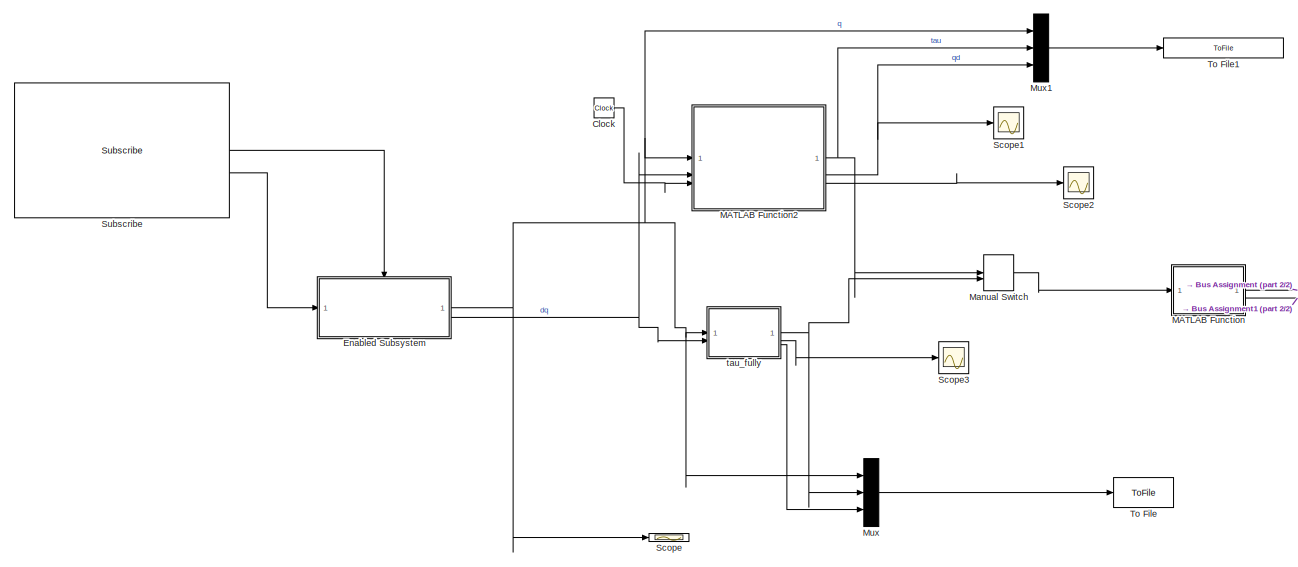
[diagram: root canvas - part 1/2, left side, full height]
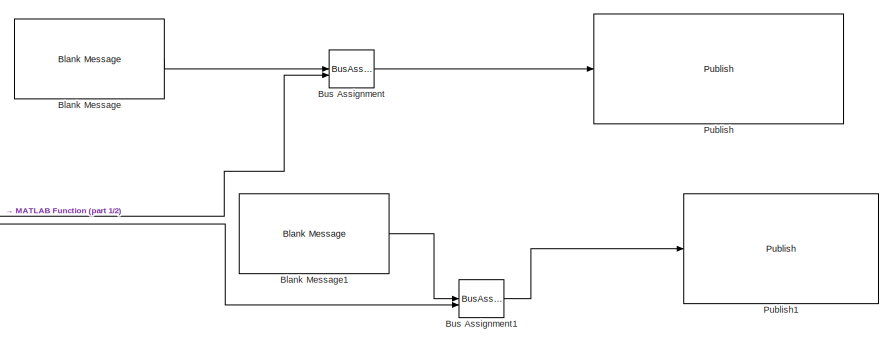
[diagram: root canvas - part 2/2, middle right region]
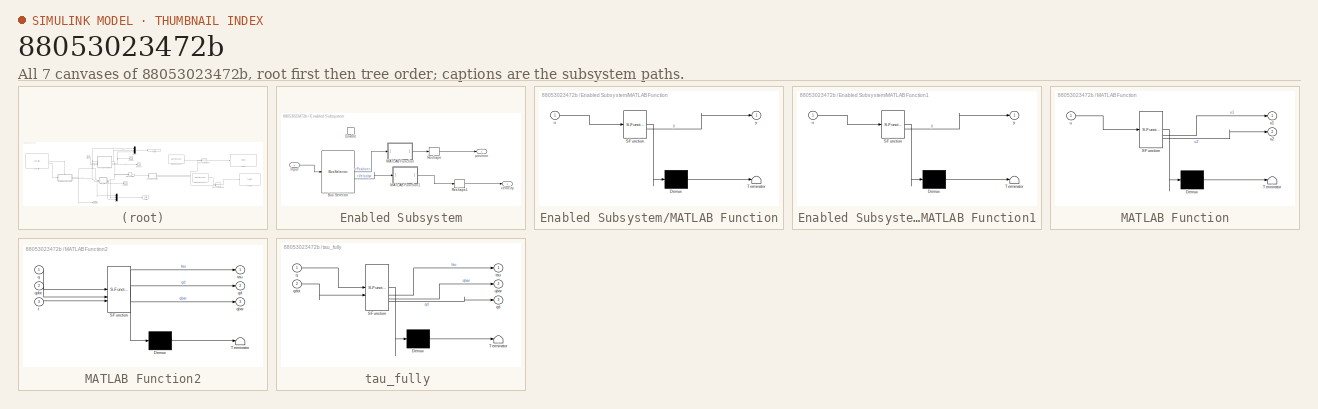
[diagram: thumbnail index - all 7 canvases of the model, root first then tree order]
MODEL slx_88053023472b
KIND model
CONFIG AbsTol = auto
CONFIG EnableMultiTasking = off
CONFIG FixedStep = 0.002
CONFIG MaxStep = auto
CONFIG MinStep = auto
CONFIG RelTol = 1e-3
CONFIG SampleTimeConstraint = Unconstrained
CONFIG SolverName = ode1
CONFIG StartTime = 0.0
CONFIG StopTime = 6
BLOCK [Reference] Blank Message  REF=robotlib/Blank Message
  LibrarySourceBlock = roslib/ROS/Blank Message
  SourceBlock = robotlib/Blank Message
  SourceType = ROS Blank Message
BLOCK [Reference] Blank Message1  REF=robotlib/Blank Message
  LibrarySourceBlock = roslib/ROS/Blank Message
  SourceBlock = robotlib/Blank Message
  SourceType = ROS Blank Message
BLOCK [BusAssignment] Bus Assignment
  AssignedSignals = Data
BLOCK [BusAssignment] Bus Assignment1
  AssignedSignals = Data
BLOCK [Clock] Clock
BLOCK [SubSystem] Enabled Subsystem
  TreatAsAtomicUnit = on
BLOCK [BusSelector] Enabled Subsystem/Bus Selector
  OutputSignals = Position,Velocity
BLOCK [EnablePort] Enabled Subsystem/Enable
BLOCK [Inport] Enabled Subsystem/Input
BLOCK [SubSystem] Enabled Subsystem/MATLAB Function
  ErrorFcn = Stateflow.Translate.translate
  LibrarySourceBlock = simulink/User-Defined\nFunctions/MATLAB Function
  PermitHierarchicalResolution = ExplicitOnly
  SFBlockType = MATLAB Function
  TreatAsAtomicUnit = on
BLOCK [Demux] Enabled Subsystem/MATLAB Function/ Demux 
  Outputs = 1
BLOCK [S-Function] Enabled Subsystem/MATLAB Function/ SFunction 
  EnableBusSupport = on
  FunctionName = sf_sfun
  PortCounts = [1 2]
  SFcnIsStateOwnerBlock = off
  SFunctionDeploymentMode = off
  Tag = Stateflow S-Function 13
BLOCK [Terminator] Enabled Subsystem/MATLAB Function/ Terminator 
BLOCK [Inport] Enabled Subsystem/MATLAB Function/u
BLOCK [Outport] Enabled Subsystem/MATLAB Function/y
BLOCK [SubSystem] Enabled Subsystem/MATLAB Function1
  ErrorFcn = Stateflow.Translate.translate
  LibrarySourceBlock = simulink/User-Defined\nFunctions/MATLAB Function
  PermitHierarchicalResolution = ExplicitOnly
  SFBlockType = MATLAB Function
  TreatAsAtomicUnit = on
BLOCK [Demux] Enabled Subsystem/MATLAB Function1/ Demux 
  Outputs = 1
BLOCK [S-Function] Enabled Subsystem/MATLAB Function1/ SFunction 
  EnableBusSupport = on
  FunctionName = sf_sfun
  PortCounts = [1 2]
  SFcnIsStateOwnerBlock = off
  SFunctionDeploymentMode = off
  Tag = Stateflow S-Function 14
BLOCK [Terminator] Enabled Subsystem/MATLAB Function1/ Terminator 
BLOCK [Inport] Enabled Subsystem/MATLAB Function1/u
BLOCK [Outport] Enabled Subsystem/MATLAB Function1/y
BLOCK [Reshape] Enabled Subsystem/Reshape
  OutputDimensionality = Column vector (2-D)
BLOCK [Reshape] Enabled Subsystem/Reshape1
  OutputDimensionality = Column vector (2-D)
BLOCK [Outport] Enabled Subsystem/position
BLOCK [Outport] Enabled Subsystem/velocity
  Port = 2
BLOCK [SubSystem] MATLAB Function
  ErrorFcn = Stateflow.Translate.translate
  LibrarySourceBlock = simulink/User-Defined\nFunctions/MATLAB Function
  PermitHierarchicalResolution = ExplicitOnly
  SFBlockType = MATLAB Function
  TreatAsAtomicUnit = on
BLOCK [Demux] MATLAB Function/ Demux 
  Outputs = 1
BLOCK [S-Function] MATLAB Function/ SFunction 
  EnableBusSupport = on
  FunctionName = sf_sfun
  PortCounts = [1 3]
  SFcnIsStateOwnerBlock = off
  SFunctionDeploymentMode = off
  Tag = Stateflow S-Function 3
BLOCK [Terminator] MATLAB Function/ Terminator 
BLOCK [Inport] MATLAB Function/u
BLOCK [Outport] MATLAB Function/u1
BLOCK [Outport] MATLAB Function/u2
  Port = 2
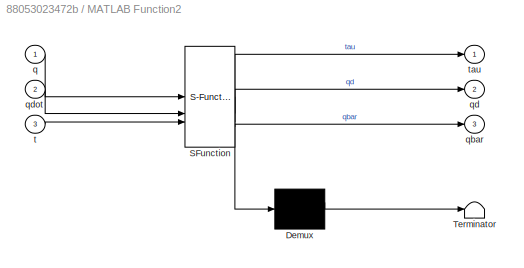
BLOCK [SubSystem] MATLAB Function2
  ErrorFcn = Stateflow.Translate.translate
  PermitHierarchicalResolution = ExplicitOnly
  SFBlockType = MATLAB Function
  TreatAsAtomicUnit = on
BLOCK [Demux] MATLAB Function2/ Demux 
  Outputs = 1
BLOCK [S-Function] MATLAB Function2/ SFunction 
  EnableBusSupport = on
  FunctionName = sf_sfun
  PortCounts = [3 4]
  SFcnIsStateOwnerBlock = off
  SFunctionDeploymentMode = off
  Tag = Stateflow S-Function 2
BLOCK [Terminator] MATLAB Function2/ Terminator 
BLOCK [Inport] MATLAB Function2/q
BLOCK [Outport] MATLAB Function2/qbar
  Port = 3
BLOCK [Outport] MATLAB Function2/qd
  Port = 2
BLOCK [Inport] MATLAB Function2/qdot
  Port = 2
BLOCK [Inport] MATLAB Function2/t
  Port = 3
BLOCK [Outport] MATLAB Function2/tau
BLOCK [ManualSwitch] Manual Switch
BLOCK [Mux] Mux
  DisplayOption = bar
  Inputs = 3
BLOCK [Mux] Mux1
  DisplayOption = bar
  Inputs = 3
BLOCK [Reference] Publish  REF=robotlib/Publish
  LibrarySourceBlock = roslib/ROS/Publish
  SourceBlock = robotlib/Publish
  SourceType = ROS Publish
BLOCK [Reference] Publish1  REF=robotlib/Publish
  LibrarySourceBlock = roslib/ROS/Publish
  SourceBlock = robotlib/Publish
  SourceType = ROS Publish
BLOCK [Scope] Scope
  Floating = off
  NumInputPorts = 1
  ScopeSpecificationString = Simulink.scopes.TimeScopeBlockCfg('CurrentConfiguration', extmgr.ConfigurationSet(extmgr.Configuration('Core','General UI',true),extmgr.Configuration('Core','Source UI',true),extmgr.Configuration('Sources','WiredSimulink',true),extmgr.Configuration('Visuals','Time Domain',true,'SerializedDisplays',{struct('MinYLimReal','-1.56701','MaxYLimReal','1.33818','YLabelReal','','MinYLimMag','0.00000','MaxY...<+1385ch>
BLOCK [Scope] Scope1
  Floating = off
  NumInputPorts = 1
  ScopeSpecificationString = Simulink.scopes.TimeScopeBlockCfg('CurrentConfiguration', extmgr.ConfigurationSet(extmgr.Configuration('Core','General UI',true),extmgr.Configuration('Core','Source UI',true),extmgr.Configuration('Sources','WiredSimulink',true,'DataLoggingVariableName','ScopeData1'),extmgr.Configuration('Visuals','Time Domain',true,'SerializedDisplays',{struct('MinYLimReal','-1.42493','MaxYLimReal','1.29341','YLab...<+1370ch>
BLOCK [Scope] Scope2
  Floating = off
  NumInputPorts = 1
  ScopeSpecificationString = Simulink.scopes.TimeScopeBlockCfg('CurrentConfiguration', extmgr.ConfigurationSet(extmgr.Configuration('Core','General UI',true),extmgr.Configuration('Core','Source UI',true),extmgr.Configuration('Sources','WiredSimulink',true,'DataLoggingVariableName','ScopeData2'),extmgr.Configuration('Visuals','Time Domain',true,'SerializedDisplays',{struct('MinYLimReal','-1.38444','MaxYLimReal','1.43306','YLab...<+1438ch>
BLOCK [Scope] Scope3
  Floating = off
  NumInputPorts = 1
  ScopeSpecificationString = Simulink.scopes.TimeScopeBlockCfg('CurrentConfiguration', extmgr.ConfigurationSet(extmgr.Configuration('Core','General UI',true),extmgr.Configuration('Core','Source UI',true),extmgr.Configuration('Sources','WiredSimulink',true,'DataLoggingVariableName','ScopeData3'),extmgr.Configuration('Visuals','Time Domain',true,'SerializedDisplays',{struct('MinYLimReal','-2.21303','MaxYLimReal','0.66305','YLab...<+1451ch>
BLOCK [Reference] Subscribe  REF=robotlib/Subscribe
  LibrarySourceBlock = roslib/ROS/Subscribe
  SourceBlock = robotlib/Subscribe
  SourceType = ROS Subscribe
BLOCK [ToFile] To File
  Filename = q_ros.mat
  MatrixName = q
  SaveFormat = Timeseries
BLOCK [ToFile] To File1
  Filename = q_ros_traj2.mat
  MatrixName = q
  SaveFormat = Timeseries
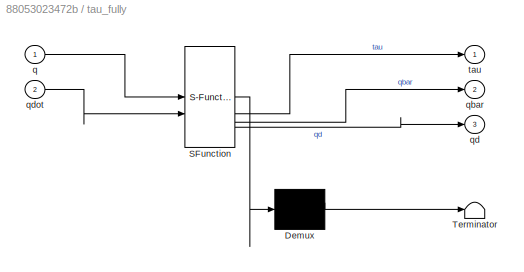
BLOCK [SubSystem] tau_fully 
  ErrorFcn = Stateflow.Translate.translate
  PermitHierarchicalResolution = ExplicitOnly
  SFBlockType = MATLAB Function
  TreatAsAtomicUnit = on
BLOCK [Demux] tau_fully / Demux 
  Outputs = 1
BLOCK [S-Function] tau_fully / SFunction 
  EnableBusSupport = on
  FunctionName = sf_sfun
  PortCounts = [2 4]
  SFcnIsStateOwnerBlock = off
  SFunctionDeploymentMode = off
  Tag = Stateflow S-Function 1
BLOCK [Terminator] tau_fully / Terminator 
BLOCK [Inport] tau_fully /q
BLOCK [Outport] tau_fully /qbar
  Port = 2
BLOCK [Outport] tau_fully /qd
  Port = 3
BLOCK [Inport] tau_fully /qdot
  Port = 2
BLOCK [Outport] tau_fully /tau
  VectorParamsAs1DForOutWhenUnconnected = off
LINE Blank Message1:1 -> Bus Assignment1:1
LINE Blank Message:1 -> Bus Assignment:1
LINE Bus Assignment1:1 -> Publish1:1
LINE Bus Assignment:1 -> Publish:1
LINE Clock:1 -> MATLAB Function2:3
LINE Enabled Subsystem/Bus Selector:1 -> Enabled Subsystem/MATLAB Function:1
LINE Enabled Subsystem/Bus Selector:2 -> Enabled Subsystem/MATLAB Function1:1
LINE Enabled Subsystem/Input:1 -> Enabled Subsystem/Bus Selector:1
LINE Enabled Subsystem/MATLAB Function1:1 -> Enabled Subsystem/Reshape1:1
LINE Enabled Subsystem/MATLAB Function:1 -> Enabled Subsystem/Reshape:1
LINE Enabled Subsystem/Reshape1:1 -> Enabled Subsystem/velocity:1
LINE Enabled Subsystem/Reshape:1 -> Enabled Subsystem/position:1
NET Enabled Subsystem:1 -> MATLAB Function2:1, Mux1:1, Mux:1, Scope:1, tau_fully :1
NET Enabled Subsystem:2 -> MATLAB Function2:2, tau_fully :2
NET MATLAB Function2:1 -> Manual Switch:1, Mux1:2
NET MATLAB Function2:2 -> Mux1:3, Scope1:1
LINE MATLAB Function2:3 -> Scope2:1
LINE MATLAB Function:1 -> Bus Assignment:2
LINE MATLAB Function:2 -> Bus Assignment1:2
LINE Manual Switch:1 -> MATLAB Function:1
LINE Mux1:1 -> To File1:1
LINE Mux:1 -> To File:1
LINE Subscribe:1 -> Enabled Subsystem:enable
LINE Subscribe:2 -> Enabled Subsystem:1
NET tau_fully :1 -> Manual Switch:2, Mux:2
LINE tau_fully :2 -> Scope3:1
LINE tau_fully :3 -> Mux:3
note: NET lines group one-source signal fan-out (src -> all destinations, sorted); 1:1 wires keep LINE
CHART tau_fully
 states=1 transitions=1
  STATE_LABEL 'eML_blk_kernel()'
  STATE_LABEL 'SCRIPT:\nfunction [tau,qbar,qd]= fcn(q,qdot)\nqd=[0.6;0.8];\nqbar=q-qd;\nq2=q(2);\n\n%Conversion constants from A to Nm ([Nm/A]) obtained from feedback example\n%Ktg1=8.9250;\n%Ktg2=0.87;\nKtg1=1;\nKtg2=0.6;\n\n\nKp=diag([6,2])*1;\nKi=diag([30,10]);\nKd=diag([0.5,0.1]);\n%Mass Inertial matrix\nm1=1.5;\nm2=0.8733;\nI1=0.0102;\nI2=0.0085;\nr1=0.159;\nr2=0.0550; \nl1=0.3493;\nl2=0.2975;\na1=m1*r1^2+m2*l1^2+I1;\na2=m2*r2^2+I2;...<+1061ch>'
CHART MATLAB Function2 states=1 transitions=1
  STATE_LABEL 'eML_blk_kernel()'
  STATE_LABEL 'SCRIPT:\nfunction [tau,qd,qbar]= fcn(q,qdot,t)\nqd=[0.6;0.8];\nmeat_trajectory_q1_4=[ -0.0399    0.3374   -0.8211    1.0209   -1.2782];\nmeat_trajectory_q2_4=[0.0673   -0.5507    1.2833   -1.2111    1.1745];\nmeat_trajectory_q1_6_10=[-0.000009277410992   0.000090314572996   0.001297915318347  -0.026304684172646   0.182139231267472  -0.651240398320963 1.291186157873882  -1.351097352337477   0.5323895485...<+1799ch>'
CHART MATLAB Function states=1 transitions=1
  STATE_LABEL 'eML_blk_kernel()'
  STATE_LABEL 'SCRIPT:\nfunction [u1,u2]= fcn(u)\nu1=u(1)\nu2=u(2)'
CHART Enabled
Subsystem/MATLAB Function states=1 transitions=1
  STATE_LABEL 'eML_blk_kernel()'
  STATE_LABEL 'SCRIPT:\nfunction y = fcn(u)\ny=[0;0]\n\ny(1)=u(1)\ny(2)=u(2)\n'
CHART Enabled
Subsystem/MATLAB Function1 states=1 transitions=1
  STATE_LABEL 'eML_blk_kernel()'
  STATE_LABEL 'SCRIPT:\nfunction y = fcn(u)\ny=[0;0]\n\ny(1)=u(1)\ny(2)=u(2)\n\n'
CHART  states=0 transitions=0
CHART  states=0 transitions=0
CHART  states=0 transitions=0
CHART  states=0 transitions=0
CHART  states=0 transitions=0
